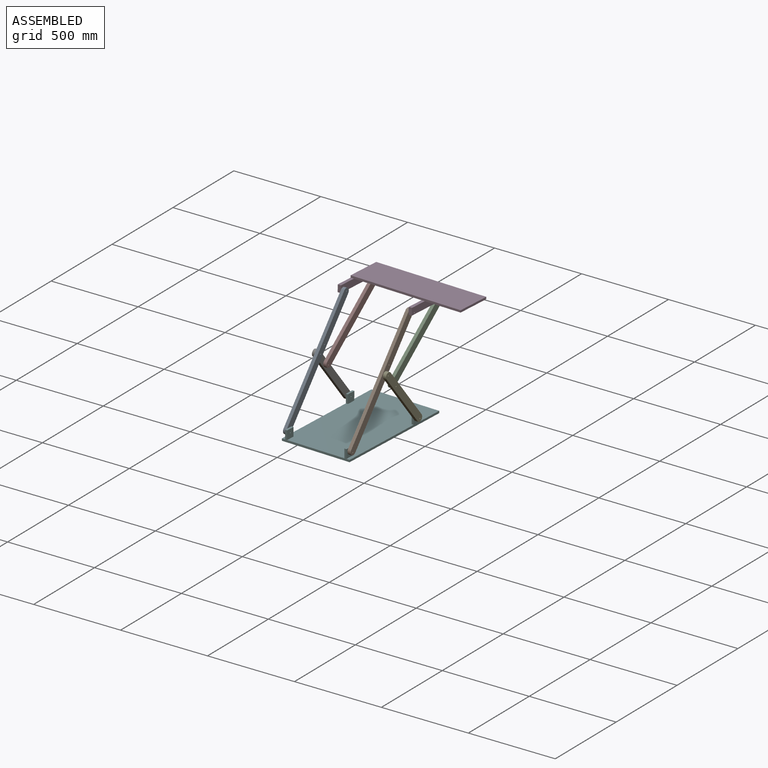
[diagram: assembled view]
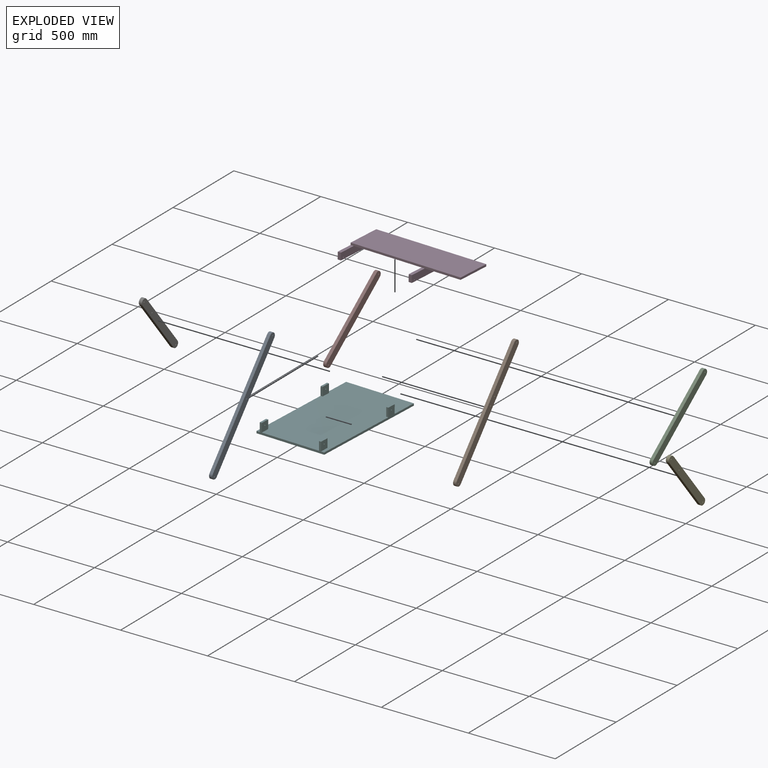
[diagram: exploded view]
GUIDED TOUR — MATED ASSEMBLY (Onshape document 4d01cd0f72bcdefc82df8630, AutoMate assembly 4d01cd0f72bcdefc82df8630_23b0ce63435392b12f5b9923_cf60069e7fa7e43b9f10fc59_default)

This assembly has 8 components, labeled P0..P7 below (a component is one placed occurrence of a part; the same part can appear more than once), held together by 11 mates. A mate is a constraint between two components; its type names the relative motion it leaves free:
  REVOLUTE — leaves rotation about the listed axis free (a hinge).
Axis/direction vectors are unit vectors and 'through' points are millimeter coordinates, both in the assembly's world frame.

MATES
  1. REVOLUTE "Revolute 7": P1 <-> P5, axis (-0.999, 0.036, -0.002) through (321.98, 135.46, 55.57) mm
  2. REVOLUTE "Revolute 3": P0 <-> P6, axis (-0.999, 0.036, -0.002) through (-50.13, 401.51, 365.28) mm
  3. REVOLUTE "Revolute 8": P4 <-> P5, axis (-0.999, 0.036, -0.002) through (359.18, 634.42, 51.89) mm
  4. REVOLUTE "Revolute 4": P3 <-> P0, axis (0.999, -0.036, 0.002) through (-43.11, 606.39, 617.46) mm
  5. REVOLUTE "Revolute 11": P2 <-> P3, axis (0.999, -0.036, 0.002) through (365.74, 841.59, 612.47) mm
  6. REVOLUTE "Revolute 5": P6 <-> P7, axis (0.999, -0.036, 0.002) through (-47.73, 463.38, 286.75) mm
  7. REVOLUTE "Revolute 6": P7 <-> P3, axis (-0.999, 0.036, -0.002) through (-33.99, 856.16, 611.76) mm
  8. REVOLUTE "Revolute 2": P6 <-> P5, axis (0.999, -0.036, 0.002) through (-40.55, 648.99, 51.18) mm
  9. REVOLUTE "Revolute 10": P2 <-> P4, axis (0.999, -0.036, 0.002) through (352.00, 448.81, 287.46) mm
  10. REVOLUTE "Revolute 1": P0 <-> P5, axis (0.999, -0.036, 0.002) through (-39.78, 148.65, 54.93) mm
  11. REVOLUTE "Revolute 9": P1 <-> P4, axis (0.999, -0.036, 0.002) through (349.61, 386.94, 365.98) mm

ASSEMBLY ORDER
  1. P7 — the base component [order verified]
  2. P5 [order verified]
  3. P0 [order verified]
  4. P1 [order verified]
  5. P2 [order verified]
  6. P4 [order verified]
  7. P3 [order verified]
  8. P6 [order verified]
Order-tag legend:
  [order verified] — this step's position reverses a verified removal order: the component was checked to insert without passing through the ones already placed.

Of the 8 components, 4 carry the full construction recipe — the FeatureScript program that regenerates the part's solid from scratch; the rest are supplied as boundary geometry only.
Each toured component is shown spotlighted twice — in the assembled view, then in the exploded view, where a leader line traces a displaced component back to its assembled socket (saturated green if recipe-attached, orange if geometry-only; every other component desaturated gray) — followed by its recipe or geometry summary and the mates that hold it.
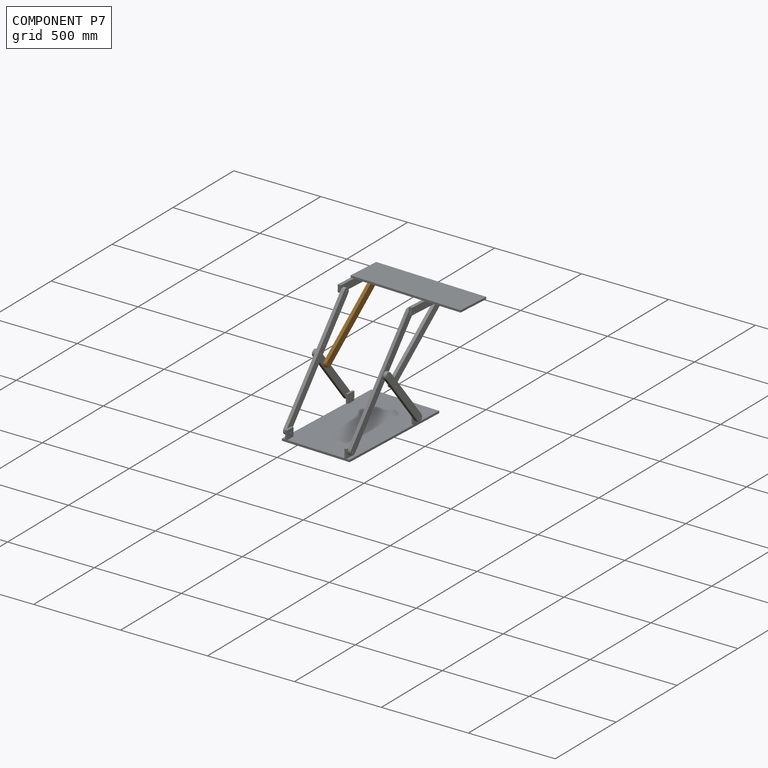
[diagram: component P7 — assembled]
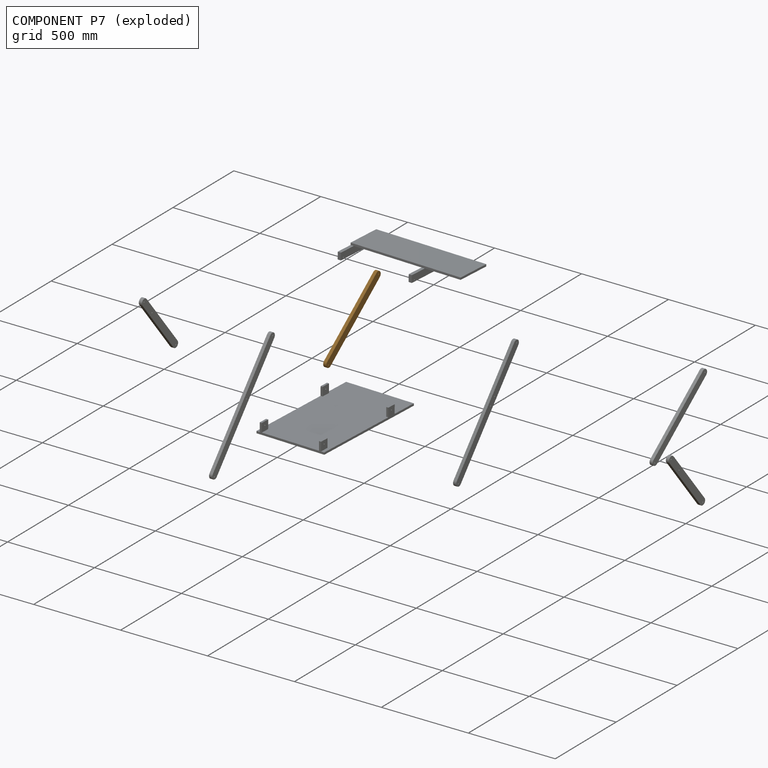
[diagram: component P7 — exploded]
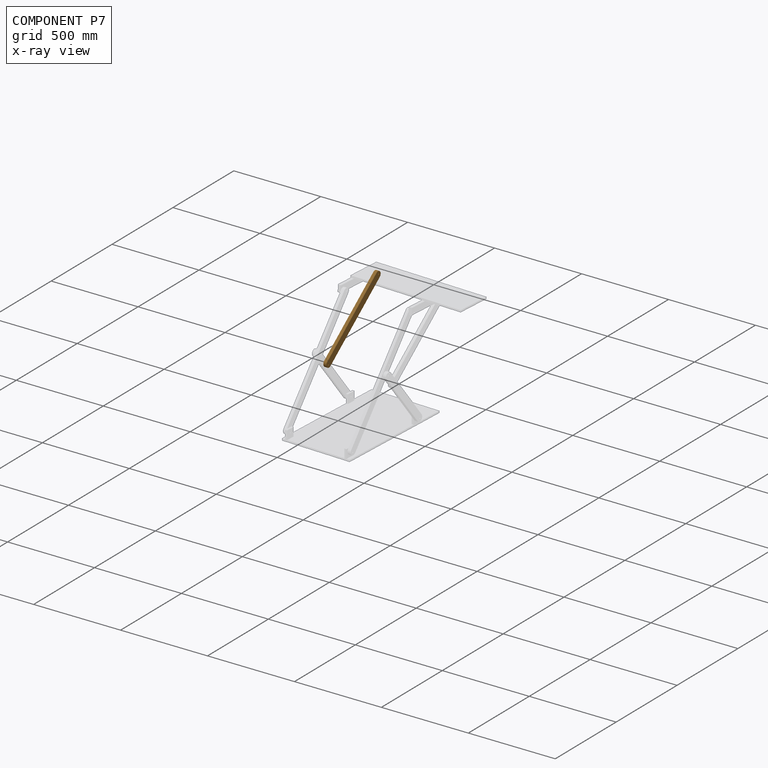
[diagram: component P7 — x-ray view]
COMPONENT P7 — geometry summary (no construction recipe available for this part):
  bounding box: 540.0 x 40.0 x 19.0 mm
  B-rep topology: 1 solid, 8 faces, 36 edges
  volume: 402802 mm^3 (98% of its bounding box)
  symmetry: 2-fold rotationally symmetric about the x axis; 2-fold rotationally symmetric about the y axis; 2-fold rotationally symmetric about the z axis; mirror-symmetric across its x mid-plane, y mid-plane, z mid-plane
Held by: REVOLUTE mate "Revolute 5" to P6; REVOLUTE mate "Revolute 6" to P3.
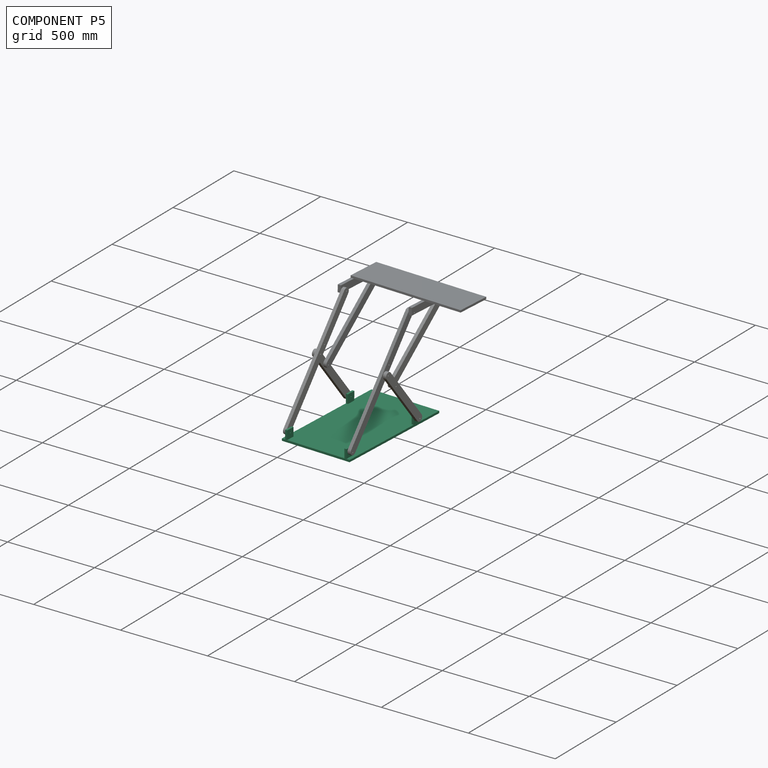
[diagram: component P5 — assembled]
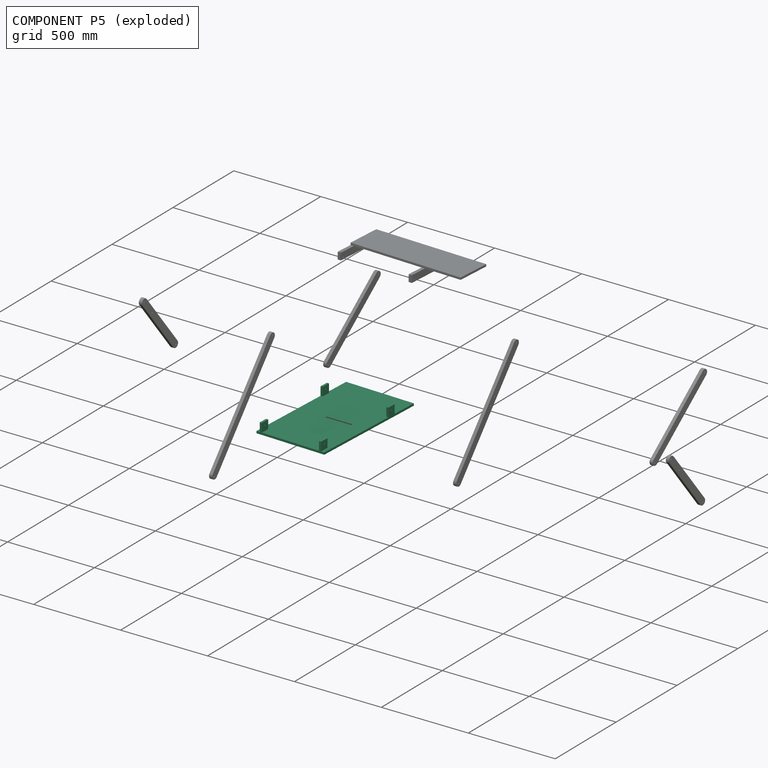
[diagram: component P5 — exploded]
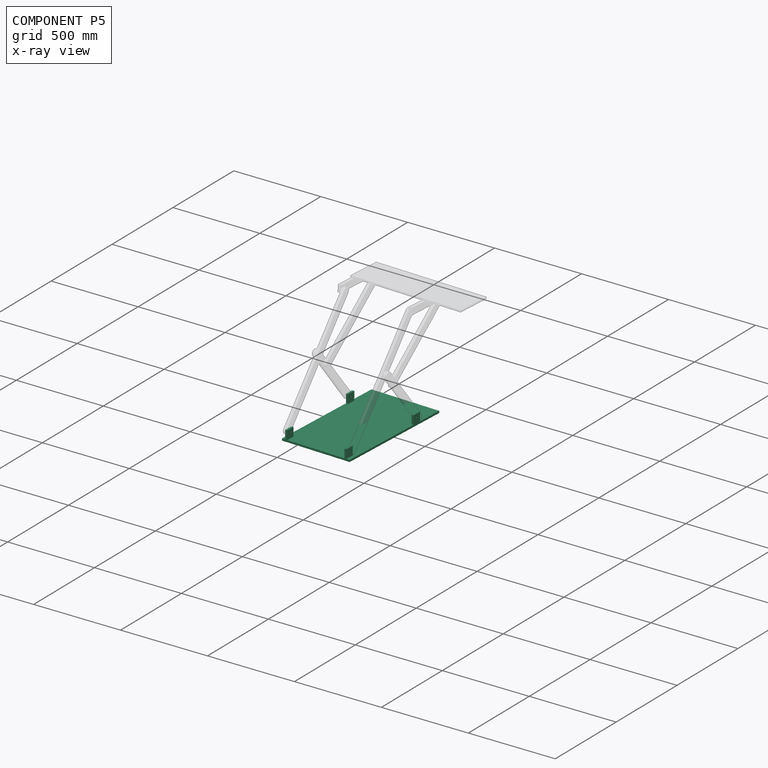
[diagram: component P5 — x-ray view]
COMPONENT P5 — recipe-attached (CADFS 00257609, mesh-verified: the recipe's output STEP matches this component's geometry to below the mesh-comparison resolution (tessellation chordal tolerance ~1.21 mm)).
Held by: REVOLUTE mate "Revolute 7" to P1; REVOLUTE mate "Revolute 8" to P4; REVOLUTE mate "Revolute 2" to P6; REVOLUTE mate "Revolute 1" to P0.
Construction recipe (FeatureScript — the CAD program that rebuilds this solid; sketch coordinates are in the units given by the * unit suffixes, e.g. mm):

FeatureScript 1511;
import(path : "onshape/std/geometry.fs", version : "1511.0");
import(path : "onshape/std/common.fs", version : "1511.0");
const mm = millimeter;
const VERTEX = EntityType.VERTEX;
const EDGE = EntityType.EDGE;
const FACE = EntityType.FACE;
const BODY = EntityType.BODY;
function v(x, y){return vector(x, y);}
function OD(order){return orderDisambiguation(order);}
function OSD(set){return originalSetDisambiguation(set);}
function TD(topology){return topologyDisambiguation(topology);}
function TDD(query){return trueDependencyDisambiguation(query);}
function sQuery(a, b, c) {return sketchEntityQuery(a, b, c);}

annotation { "Feature Type Name" : "Feature", "Feature Type Description" : "" }
export const myFeature = defineFeature(function(context is Context, id is Id, definition is map)
    precondition{}
    {
        {
            var Q0;
            Q0=qCreatedBy(makeId("Front.planeOp"),FACE);
            var sketch = newSketch(context, id + "F0", { "sketchPlane" : qUnion([Q0])});
            skLineSegment(sketch, "E0.bottom", {"start": v(0, 0) * mm, "end": v(400, 0) * mm});
            skLineSegment(sketch, "E0.top", {"start": v(0, 12) * mm, "end": v(400, 12) * mm});
            skLineSegment(sketch, "E0.left", {"start": v(0, 0) * mm, "end": v(0, 12) * mm});
            skLineSegment(sketch, "E0.right", {"start": v(400, 0) * mm, "end": v(400, 12) * mm});
            skSolve(sketch);
        }
        {
            var Q0;
            Q0=makeQuery(id+"F0.imprint","IMPRINT",FACE,{"disambiguationData":[TD([[makeQuery(id+"F0.imprint","IMPRINT",EDGE,{"derivedFrom":sQuery(id+"F0.wireOp",EDGE,"E0.bottom")}),1.0]])]});
            extrude(context, id + "F1", {"entities" : qUnion([Q0]), "oppositeDirection" : true, "depth" : 700 * mm});
        }
        {
            var Q0;
            Q0=makeQuery(id+"F1.opExtrude","SWEPT_FACE",FACE,{"disambiguationData":[OSD([sQuery(id+"F0.wireOp",EDGE,"E0.top")])]});
            var sketch = newSketch(context, id + "F2", { "sketchPlane" : qUnion([Q0])});
            skLineSegment(sketch, "E1.bottom", {"start": v(31, 0) * mm, "end": v(19, 0) * mm});
            skLineSegment(sketch, "E1.top", {"start": v(31, 50) * mm, "end": v(19, 50) * mm});
            skLineSegment(sketch, "E1.left", {"start": v(31, 0) * mm, "end": v(31, 50) * mm});
            skLineSegment(sketch, "E1.right", {"start": v(19, 0) * mm, "end": v(19, 50) * mm});
            skLineSegment(sketch, "E2.bottom", {"start": v(381, 0) * mm, "end": v(369, 0) * mm});
            skLineSegment(sketch, "E2.top", {"start": v(381, 50) * mm, "end": v(369, 50) * mm});
            skLineSegment(sketch, "E2.left", {"start": v(381, 0) * mm, "end": v(381, 50) * mm});
            skLineSegment(sketch, "E2.right", {"start": v(369, 0) * mm, "end": v(369, 50) * mm});
            skLineSegment(sketch, "E3.bottom", {"start": v(0, 550) * mm, "end": v(12, 550) * mm});
            skLineSegment(sketch, "E3.top", {"start": v(0, 500) * mm, "end": v(12, 500) * mm});
            skLineSegment(sketch, "E3.left", {"start": v(0, 550) * mm, "end": v(0, 500) * mm});
            skLineSegment(sketch, "E3.right", {"start": v(12, 550) * mm, "end": v(12, 500) * mm});
            skLineSegment(sketch, "E4.bottom", {"start": v(388, 550) * mm, "end": v(400, 550) * mm});
            skLineSegment(sketch, "E4.top", {"start": v(388, 500) * mm, "end": v(400, 500) * mm});
            skLineSegment(sketch, "E4.left", {"start": v(388, 550) * mm, "end": v(388, 500) * mm});
            skLineSegment(sketch, "E4.right", {"start": v(400, 550) * mm, "end": v(400, 500) * mm});
            skSolve(sketch);
        }
        {
            var Q0;
            Q0 = qSketchRegion(id + "F2", true);
            extrude(context, id + "F3", {"entities" : qUnion([Q0]), "operationType" : NewBodyOperationType.ADD, "depth" : 50 * mm});
        }
        {
            var Q0;
            Q0=makeQuery(id+"F3.opExtrude","SWEPT_FACE",FACE,{"disambiguationData":[OSD([sQuery(id+"F2.wireOp",EDGE,"E1.right")])]});
            var sketch = newSketch(context, id + "F4", { "sketchPlane" : qUnion([Q0])});
            skCircle(sketch, "E5", {"center": v(-25, 42) * mm, "radius": 3 * mm});
            skCircle(sketch, "E6", {"center": v(-525, 42) * mm, "radius": 3 * mm});
            skSolve(sketch);
        }
        {
            var Q0;
            Q0 = qSketchRegion(id + "F4", true);
            extrude(context, id + "F5", {"entities" : qUnion([Q0]), "operationType" : NewBodyOperationType.REMOVE, "endBound" : BoundingType.THROUGH_ALL, "oppositeDirection" : true, "depth" : 25 * mm, "hasSecondDirection" : true, "secondDirectionBound" : SecondDirectionBoundingType.THROUGH_ALL, "secondDirectionOppositeDirection" : false, "secondDirectionDepth" : 25 * mm});
        }
    });
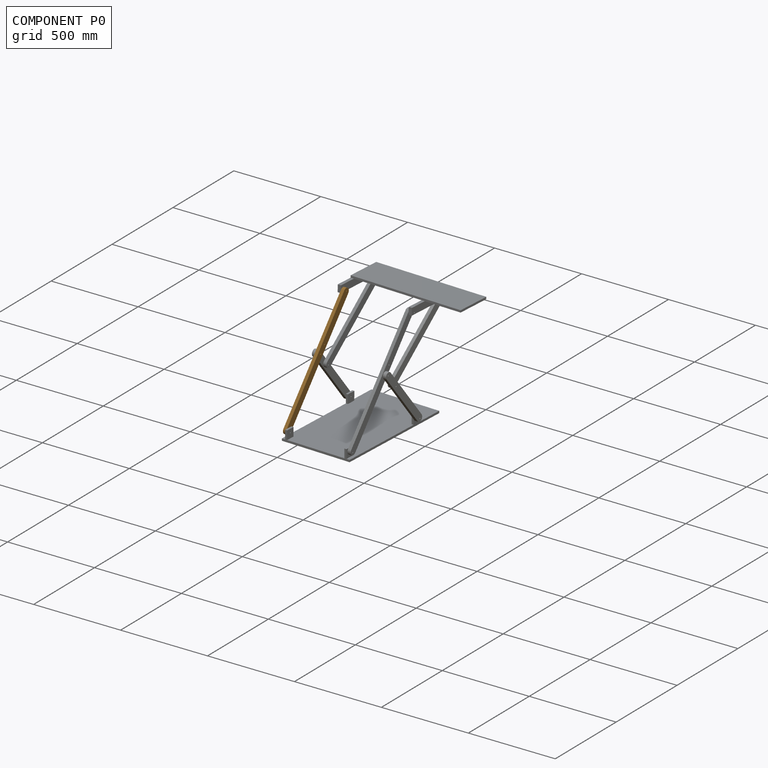
[diagram: component P0 — assembled]
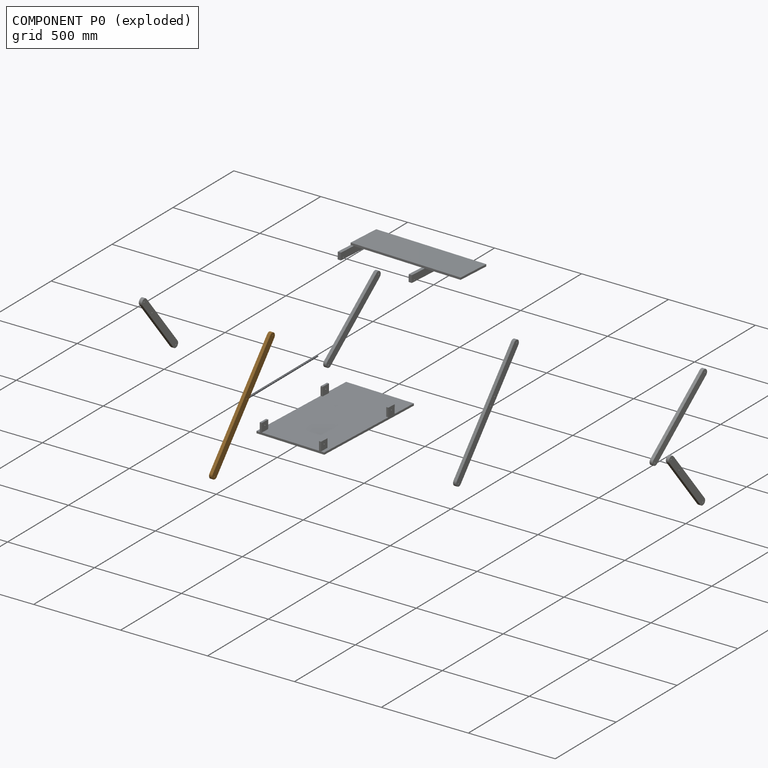
[diagram: component P0 — exploded]
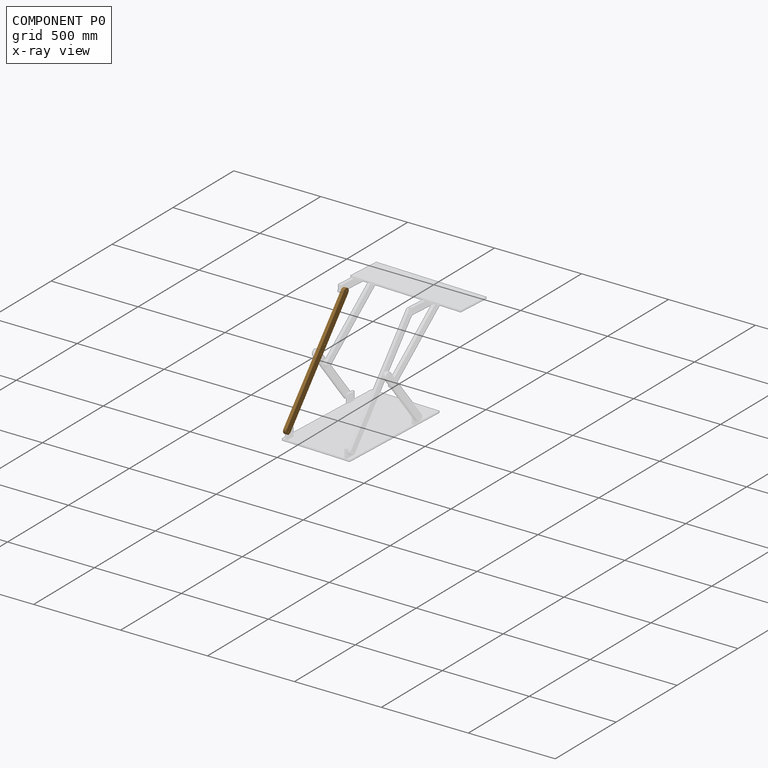
[diagram: component P0 — x-ray view]
COMPONENT P0 — geometry summary (no construction recipe available for this part):
  bounding box: 755.0 x 40.0 x 19.0 mm
  B-rep topology: 1 solid, 10 faces, 52 edges
  volume: 565127 mm^3 (98% of its bounding box)
  symmetry: 2-fold rotationally symmetric about the y axis; mirror-symmetric across its x mid-plane, z mid-plane
Held by: REVOLUTE mate "Revolute 3" to P6; REVOLUTE mate "Revolute 4" to P3; REVOLUTE mate "Revolute 1" to P5.
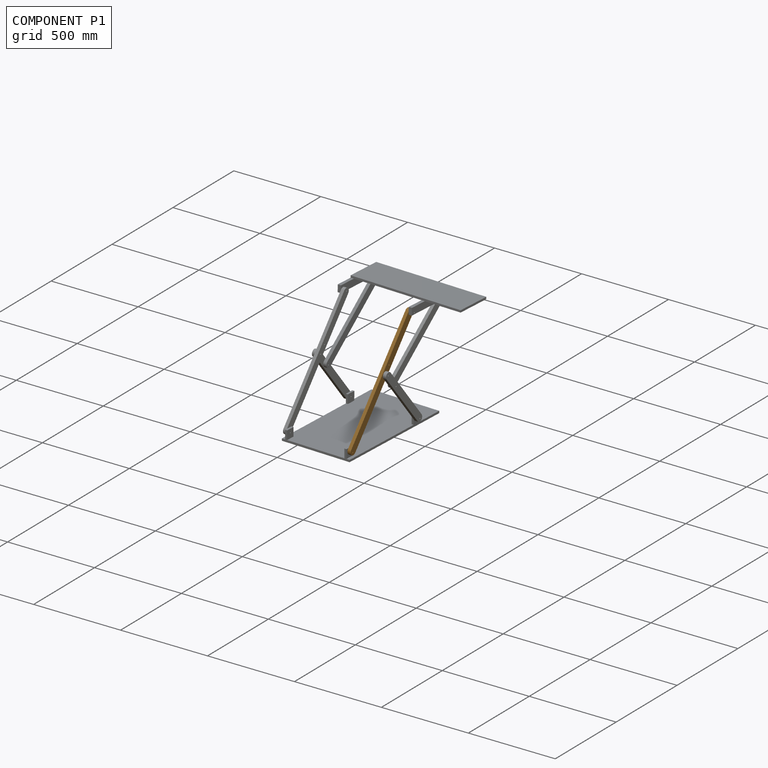
[diagram: component P1 — assembled]
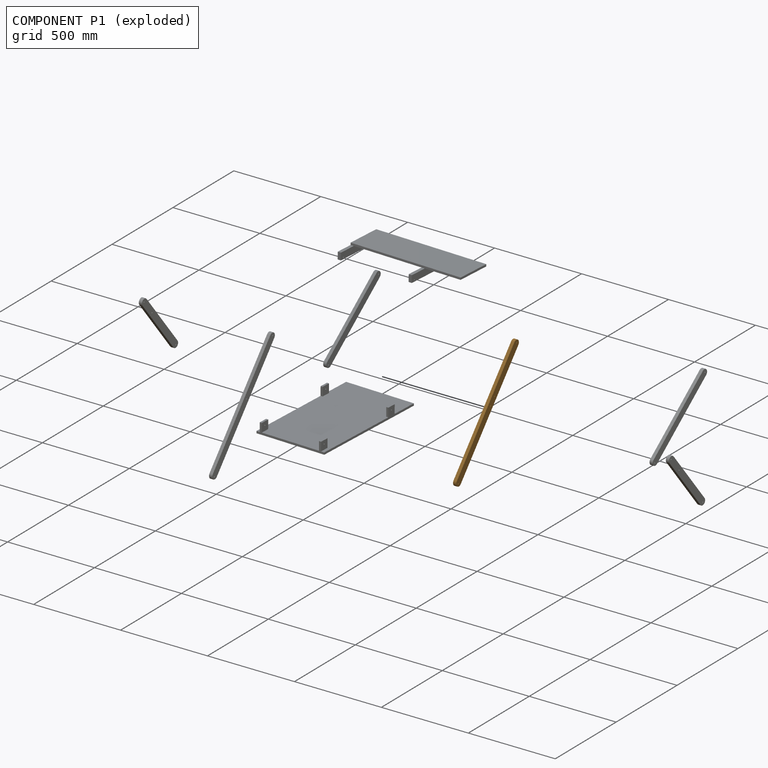
[diagram: component P1 — exploded]
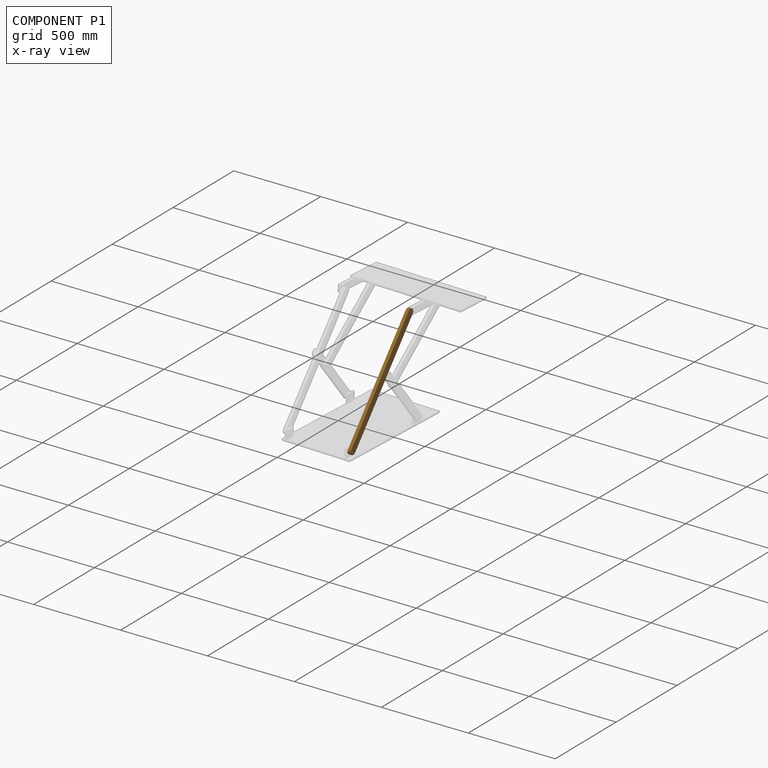
[diagram: component P1 — x-ray view]
COMPONENT P1 — geometry summary (no construction recipe available for this part):
  bounding box: 755.0 x 40.0 x 19.0 mm
  B-rep topology: 1 solid, 10 faces, 52 edges
  volume: 565127 mm^3 (98% of its bounding box)
  symmetry: 2-fold rotationally symmetric about the y axis; mirror-symmetric across its x mid-plane, z mid-plane
Held by: REVOLUTE mate "Revolute 7" to P5; REVOLUTE mate "Revolute 9" to P4.
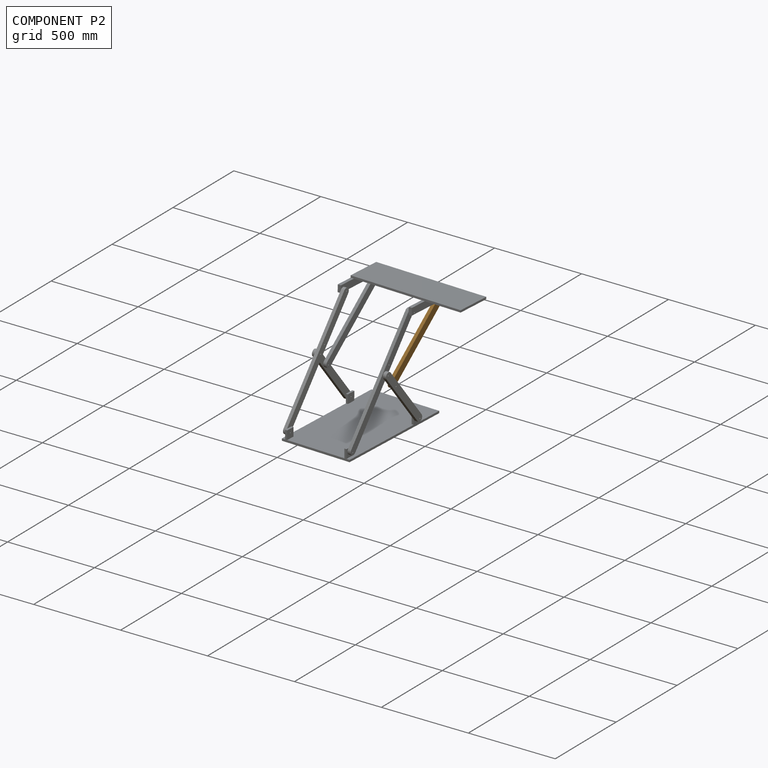
[diagram: component P2 — assembled]
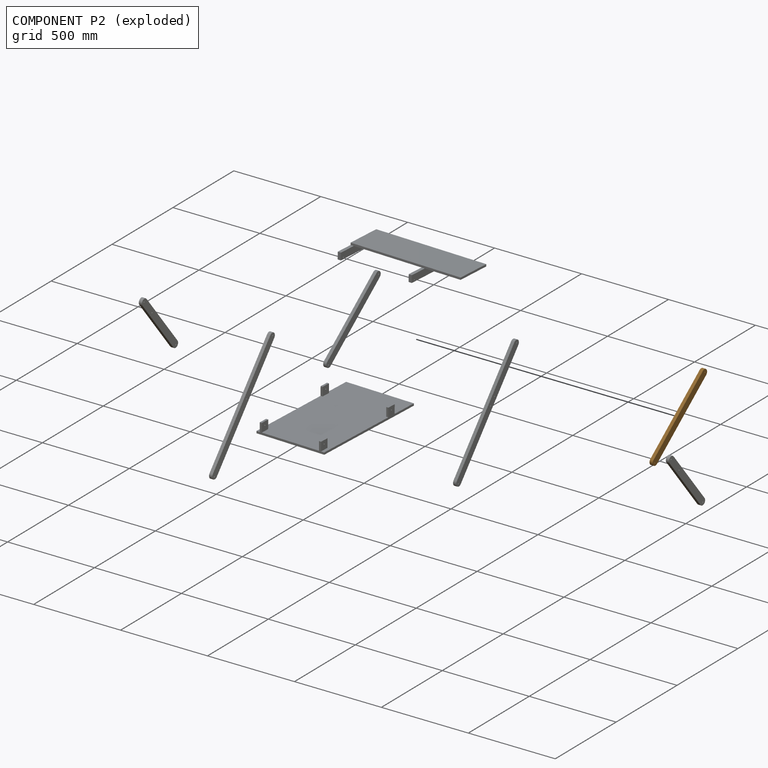
[diagram: component P2 — exploded]
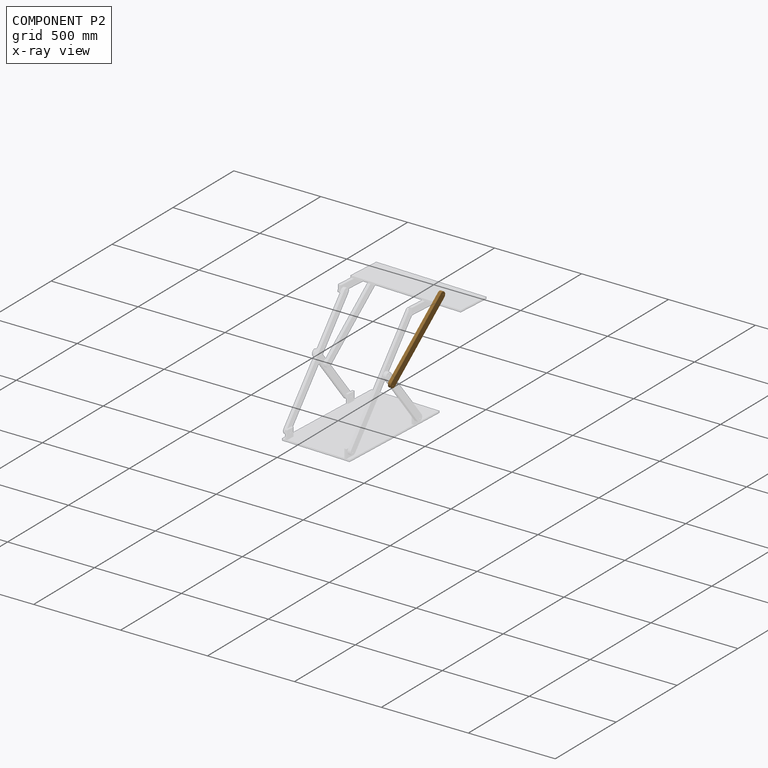
[diagram: component P2 — x-ray view]
COMPONENT P2 — geometry summary (no construction recipe available for this part):
  bounding box: 540.0 x 40.0 x 19.0 mm
  B-rep topology: 1 solid, 8 faces, 36 edges
  volume: 402802 mm^3 (98% of its bounding box)
  symmetry: 2-fold rotationally symmetric about the x axis; 2-fold rotationally symmetric about the y axis; 2-fold rotationally symmetric about the z axis; mirror-symmetric across its x mid-plane, y mid-plane, z mid-plane
Held by: REVOLUTE mate "Revolute 11" to P3; REVOLUTE mate "Revolute 10" to P4.
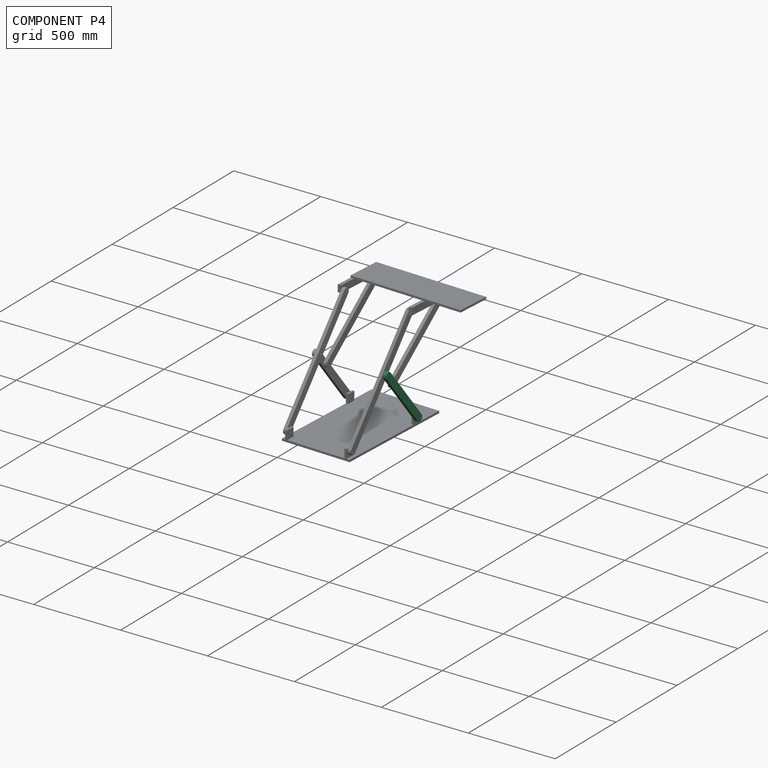
[diagram: component P4 — assembled]
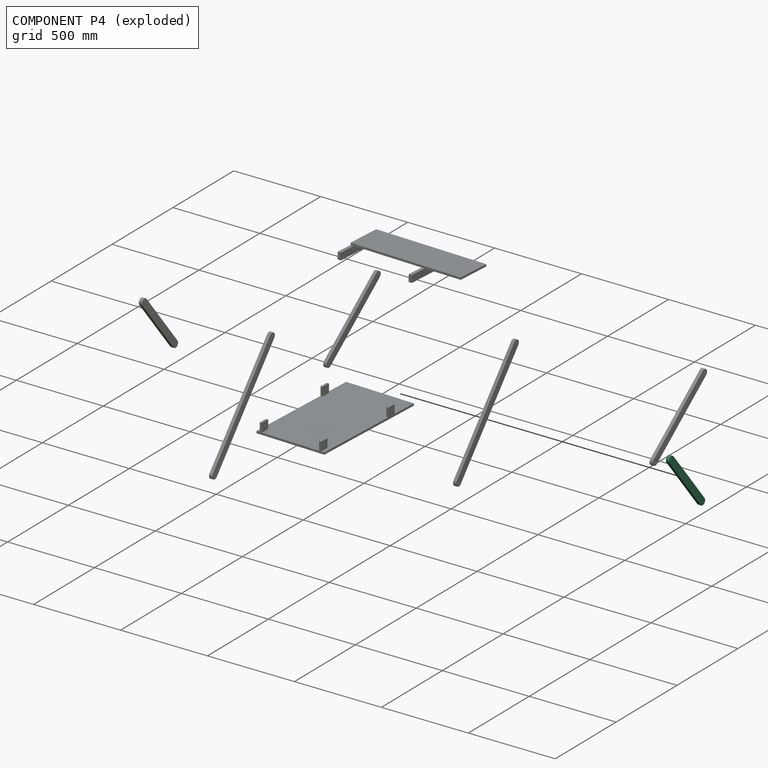
[diagram: component P4 — exploded]
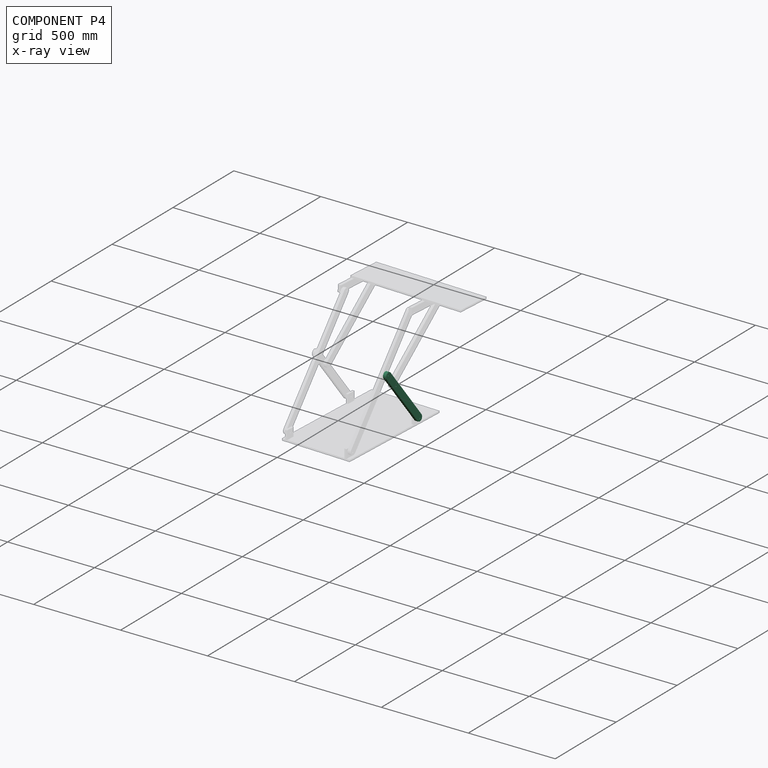
[diagram: component P4 — x-ray view]
COMPONENT P4 — recipe-attached (CADFS 00257611, mesh-verified: the recipe's output STEP matches this component's geometry to below the mesh-comparison resolution (tessellation chordal tolerance ~0.648 mm)).
Held by: REVOLUTE mate "Revolute 8" to P5; REVOLUTE mate "Revolute 10" to P2; REVOLUTE mate "Revolute 9" to P1.
Construction recipe (FeatureScript — the CAD program that rebuilds this solid; sketch coordinates are in the units given by the * unit suffixes, e.g. mm):

FeatureScript 1511;
import(path : "onshape/std/geometry.fs", version : "1511.0");
import(path : "onshape/std/common.fs", version : "1511.0");
const mm = millimeter;
const VERTEX = EntityType.VERTEX;
const EDGE = EntityType.EDGE;
const FACE = EntityType.FACE;
const BODY = EntityType.BODY;
function v(x, y){return vector(x, y);}
function OD(order){return orderDisambiguation(order);}
function OSD(set){return originalSetDisambiguation(set);}
function TD(topology){return topologyDisambiguation(topology);}
function TDD(query){return trueDependencyDisambiguation(query);}
function sQuery(a, b, c) {return sketchEntityQuery(a, b, c);}

annotation { "Feature Type Name" : "Feature", "Feature Type Description" : "" }
export const myFeature = defineFeature(function(context is Context, id is Id, definition is map)
    precondition{}
    {
        {
            var Q0;
            Q0=qCreatedBy(makeId("Right.planeOp"),FACE);
            var sketch = newSketch(context, id + "F0", { "sketchPlane" : qUnion([Q0])});
            skCircle(sketch, "E0", {"center": v(0, 0) * mm, "radius": 3 * mm});
            skCircle(sketch, "E1", {"center": v(-400, 0) * mm, "radius": 3 * mm});
            skLineSegment(sketch, "E2.bottom", {"start": v(-415, 20) * mm, "end": v(15, 20) * mm});
            skLineSegment(sketch, "E2.top", {"start": v(-415, -20) * mm, "end": v(15, -20) * mm});
            skLineSegment(sketch, "E2.left", {"start": v(-415, 20) * mm, "end": v(-415, -20) * mm});
            skLineSegment(sketch, "E2.right", {"start": v(15, 20) * mm, "end": v(15, -20) * mm});
            skSolve(sketch);
        }
        {
            var Q0;
            Q0=qSketchRegion(id+"F0",true);
            extrude(context, id + "F1", {"entities" : qUnion([Q0]), "depth" : 19 * mm});
        }
        {
            var Q0;
            Q0=makeQuery(id+"F1.opExtrude","SWEPT_EDGE",EDGE,{"disambiguationData":[OSD([sQuery(id+"F0.wireOp",EDGE,"E2.bottom"),sQuery(id+"F0.wireOp",EDGE,"E2.right")])]});
            var Q1;
            Q1=makeQuery(id+"F1.opExtrude","SWEPT_EDGE",EDGE,{"disambiguationData":[OSD([sQuery(id+"F0.wireOp",EDGE,"E2.top"),sQuery(id+"F0.wireOp",EDGE,"E2.right")])]});
            var Q2;
            Q2=makeQuery(id+"F1.opExtrude","SWEPT_EDGE",EDGE,{"disambiguationData":[OSD([sQuery(id+"F0.wireOp",EDGE,"E2.bottom"),sQuery(id+"F0.wireOp",EDGE,"E2.left")])]});
            var Q3;
            Q3=makeQuery(id+"F1.opExtrude","SWEPT_EDGE",EDGE,{"disambiguationData":[OSD([sQuery(id+"F0.wireOp",EDGE,"E2.top"),sQuery(id+"F0.wireOp",EDGE,"E2.left")])]});
            fillet(context, id + "F2", {"entities" : qUnion([Q0, Q1, Q2, Q3]), "radius" : 20 * mm, "tangentPropagation" : true, "allowEdgeOverflow" : false});
        }
        {
            var Q0;
            Q0=makeQuery(id+"F1.opExtrude","CAP_FACE",FACE,{"disambiguationData":[OSD([sQuery(id+"F0.wireOp",EDGE,"E0"),sQuery(id+"F0.wireOp",EDGE,"E1"),sQuery(id+"F0.wireOp",EDGE,"E2.bottom"),sQuery(id+"F0.wireOp",EDGE,"E2.top"),sQuery(id+"F0.wireOp",EDGE,"E2.left"),sQuery(id+"F0.wireOp",EDGE,"E2.right")])],"isStart":false});
            var sketch = newSketch(context, id + "F3", { "sketchPlane" : qUnion([Q0])});
            skCircle(sketch, "E3", {"center": v(-300, 0) * mm, "radius": 3 * mm});
            skSolve(sketch);
        }
        {
            var Q0;
            Q0 = qSketchRegion(id + "F3", true);
            extrude(context, id + "F4", {"entities" : qUnion([Q0]), "operationType" : NewBodyOperationType.REMOVE, "endBound" : BoundingType.THROUGH_ALL, "oppositeDirection" : true, "depth" : 25 * mm});
        }
    });
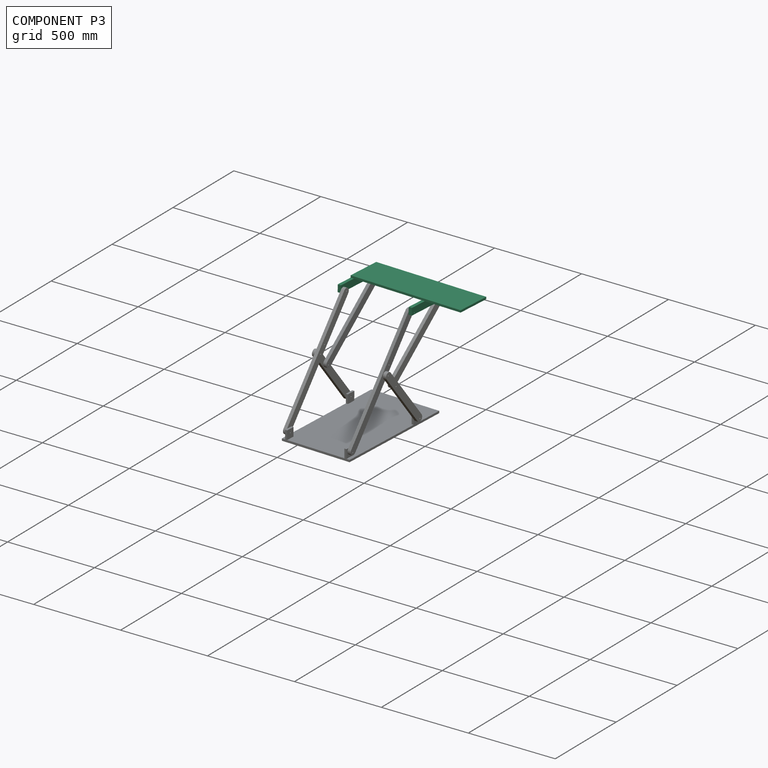
[diagram: component P3 — assembled]
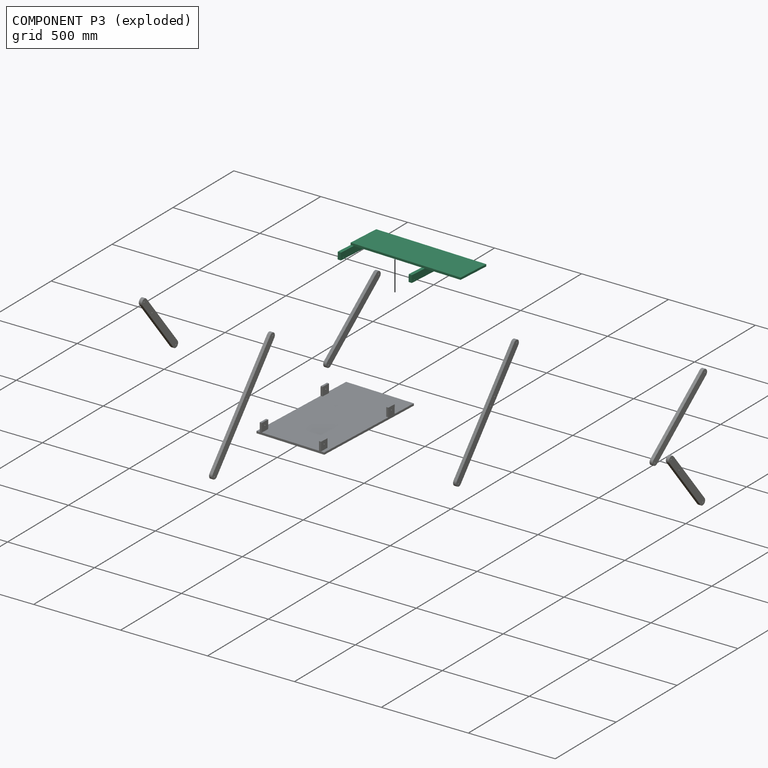
[diagram: component P3 — exploded]
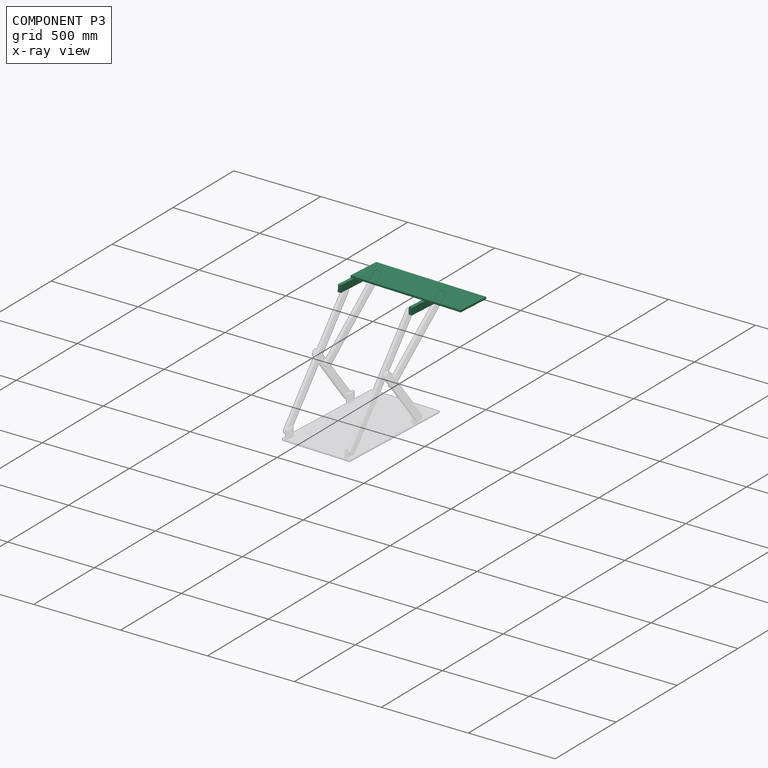
[diagram: component P3 — x-ray view]
COMPONENT P3 — recipe-attached (CADFS 00257613, mesh-verified: the recipe's output STEP matches this component's geometry to below the mesh-comparison resolution (tessellation chordal tolerance ~1.08 mm)).
Held by: REVOLUTE mate "Revolute 4" to P0; REVOLUTE mate "Revolute 11" to P2; REVOLUTE mate "Revolute 6" to P7.
Construction recipe (FeatureScript — the CAD program that rebuilds this solid; sketch coordinates are in the units given by the * unit suffixes, e.g. mm):

FeatureScript 1511;
import(path : "onshape/std/geometry.fs", version : "1511.0");
import(path : "onshape/std/common.fs", version : "1511.0");
const mm = millimeter;
const VERTEX = EntityType.VERTEX;
const EDGE = EntityType.EDGE;
const FACE = EntityType.FACE;
const BODY = EntityType.BODY;
function v(x, y){return vector(x, y);}
function OD(order){return orderDisambiguation(order);}
function OSD(set){return originalSetDisambiguation(set);}
function TD(topology){return topologyDisambiguation(topology);}
function TDD(query){return trueDependencyDisambiguation(query);}
function sQuery(a, b, c) {return sketchEntityQuery(a, b, c);}

annotation { "Feature Type Name" : "Feature", "Feature Type Description" : "" }
export const myFeature = defineFeature(function(context is Context, id is Id, definition is map)
    precondition{}
    {
        {
            var Q0;
            Q0=qCreatedBy(makeId("Top.planeOp"),FACE);
            var sketch = newSketch(context, id + "F0", { "sketchPlane" : qUnion([Q0])});
            skLineSegment(sketch, "E0.bottom", {"start": v(0, 0) * mm, "end": v(650, 0) * mm});
            skLineSegment(sketch, "E0.top", {"start": v(0, 200) * mm, "end": v(650, 200) * mm});
            skLineSegment(sketch, "E0.left", {"start": v(0, 0) * mm, "end": v(0, 200) * mm});
            skLineSegment(sketch, "E0.right", {"start": v(650, 0) * mm, "end": v(650, 200) * mm});
            skSolve(sketch);
        }
        {
            var Q0;
            Q0 = qSketchRegion(id + "F0", true);
            extrude(context, id + "F1", {"entities" : qUnion([Q0]), "depth" : 12 * mm});
        }
        {
            var Q0;
            Q0=qCreatedBy(makeId("Front.planeOp"),FACE);
            var sketch = newSketch(context, id + "F2", { "sketchPlane" : qUnion([Q0])});
            skLineSegment(sketch, "E1.bottom", {"start": v(0, 0) * mm, "end": v(19, 0) * mm});
            skLineSegment(sketch, "E1.top", {"start": v(0, -40) * mm, "end": v(19, -40) * mm});
            skLineSegment(sketch, "E1.left", {"start": v(0, 0) * mm, "end": v(0, -40) * mm});
            skLineSegment(sketch, "E1.right", {"start": v(19, 0) * mm, "end": v(19, -40) * mm});
            skLineSegment(sketch, "E2.bottom", {"start": v(419, 0) * mm, "end": v(438, 0) * mm});
            skLineSegment(sketch, "E2.top", {"start": v(419, -40) * mm, "end": v(438, -40) * mm});
            skLineSegment(sketch, "E2.left", {"start": v(419, 0) * mm, "end": v(419, -40) * mm});
            skLineSegment(sketch, "E2.right", {"start": v(438, 0) * mm, "end": v(438, -40) * mm});
            skSolve(sketch);
        }
        {
            var Q0;
            Q0 = qSketchRegion(id + "F2", true);
            var Q1;
            Q1=makeQuery(id+"F1.opExtrude","SWEPT_FACE",FACE,{"disambiguationData":[OSD([sQuery(id+"F0.wireOp",EDGE,"E0.top")])]});
            extrude(context, id + "F3", {"entities" : qUnion([Q0]), "operationType" : NewBodyOperationType.ADD, "endBound" : BoundingType.UP_TO_SURFACE, "oppositeDirection" : true, "endBoundEntityFace" : qUnion([Q1]), "depth" : 25 * mm, "hasSecondDirection" : true, "secondDirectionOppositeDirection" : false, "secondDirectionDepth" : 100 * mm});
        }
        {
            var Q0;
            Q0=makeQuery(id+"F3.boolean.opBoolean","MERGE",FACE,{"derivedFrom":[makeQuery(id+"F1.opExtrude","SWEPT_FACE",FACE,{"disambiguationData":[OSD([sQuery(id+"F0.wireOp",EDGE,"E0.left")])]}),makeQuery(id+"F3.opExtrude","SWEPT_FACE",FACE,{"disambiguationData":[OSD([sQuery(id+"F2.wireOp",EDGE,"E1.left")])]})]});
            var sketch = newSketch(context, id + "F4", { "sketchPlane" : qUnion([Q0])});
            skCircle(sketch, "E3", {"center": v(80, -30) * mm, "radius": 3 * mm});
            skCircle(sketch, "E4", {"center": v(-170, -30) * mm, "radius": 3 * mm});
            skSolve(sketch);
        }
        {
            var Q0;
            Q0 = qSketchRegion(id + "F4", true);
            extrude(context, id + "F5", {"entities" : qUnion([Q0]), "operationType" : NewBodyOperationType.REMOVE, "endBound" : BoundingType.THROUGH_ALL, "oppositeDirection" : true, "depth" : 25 * mm});
        }
    });
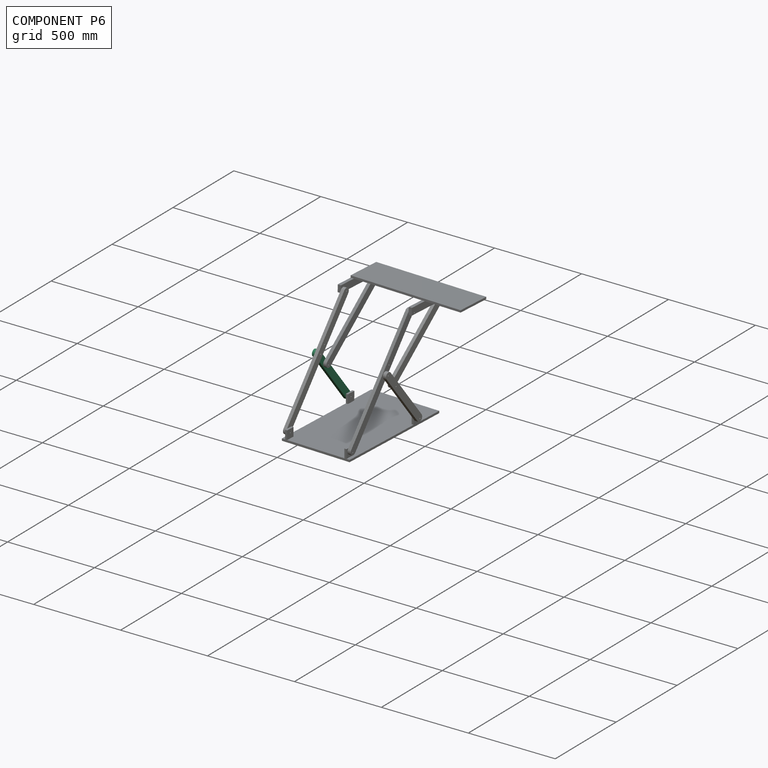
[diagram: component P6 — assembled]
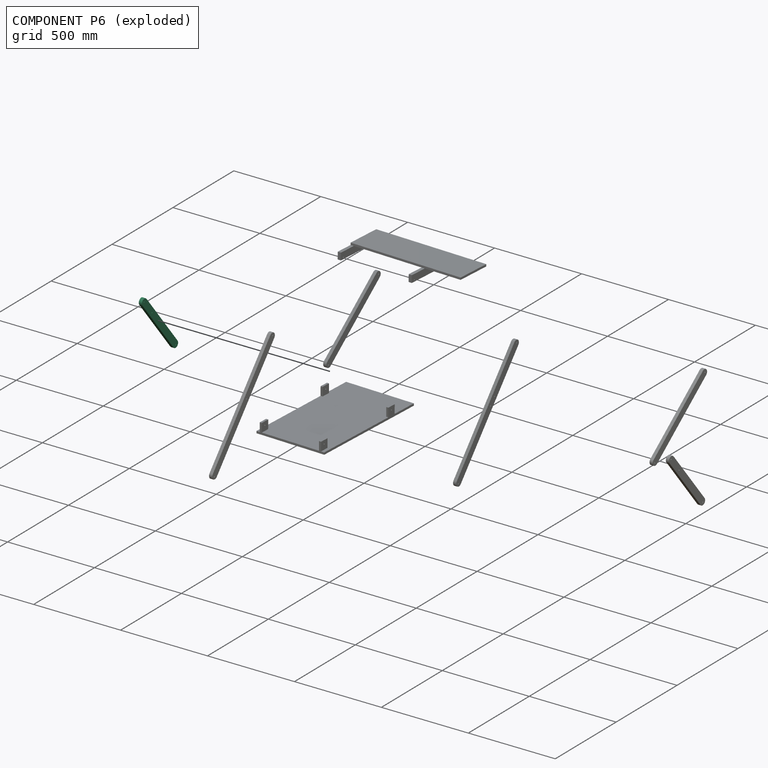
[diagram: component P6 — exploded]
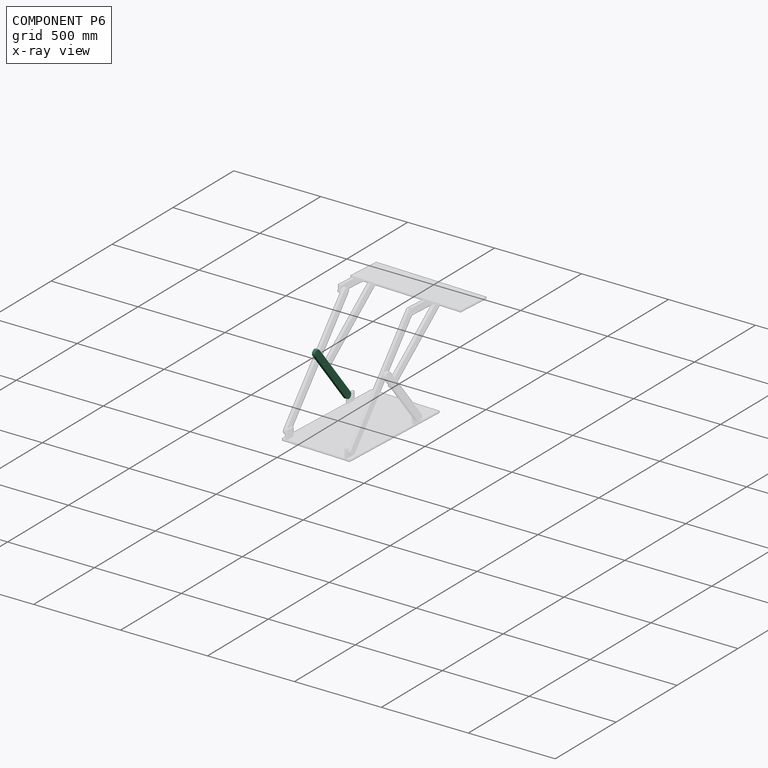
[diagram: component P6 — x-ray view]
COMPONENT P6 — same part as P4 (CADFS 00257611); its construction recipe is shown at P4.
Held by: REVOLUTE mate "Revolute 3" to P0; REVOLUTE mate "Revolute 5" to P7; REVOLUTE mate "Revolute 2" to P5.
PROVENANCE & LICENSES
Assembly (occurrences, transforms, mates, per-part STEP geometry): AutoMate dataset, Zenodo record 7776208, CC0.
Construction recipes: CADFS (HuggingFace VladPyatov/CADFS, CC-BY-4.0, layered over the ABC dataset), FeatureScript reconstruction programs keyed by ABC model id.
Join: ABC meta listings map ABC model id -> Onshape documentId; within a shared document, parts are matched by geometric signature (bounding-box dims + volume at 0.1% relative tolerance, exact B-rep face/solid counts).
Verification: 4 of this assembly's 8 components carry a recipe attachment, and every attachment is mesh-verified: the CADFS STEP and the AutoMate member STEP were compared as meshes in their shared local frame (symmetric sampled-point-to-mesh distance); worst across the 4 attachments: below the mesh-comparison resolution (tessellation chordal tolerance ~1.21 mm) on a 809 mm part.
Renders: orthographic iso camera (az 35 / el 25); the floor grid conveys scale (grid pitch printed in each image; no ruler). In the exploded view each component is displaced by its stored offset vector: the offsets alone carry the explosion direction (mate normal/axis signs are not orientation cues and do not encode it), and separation distances are assigned per mate-chain, not proportionally to assembly-order depth.
